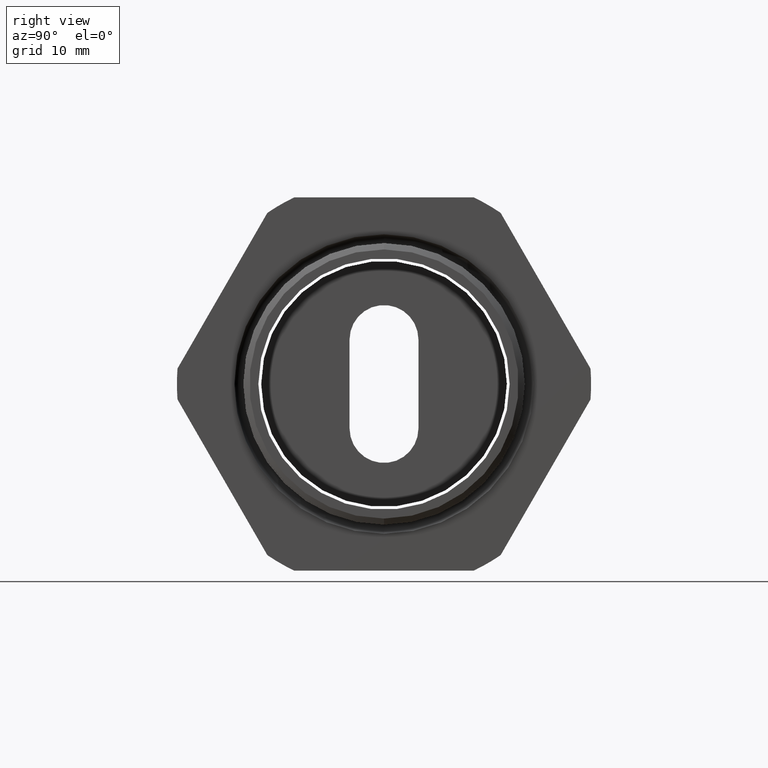
[diagram: clean part render]
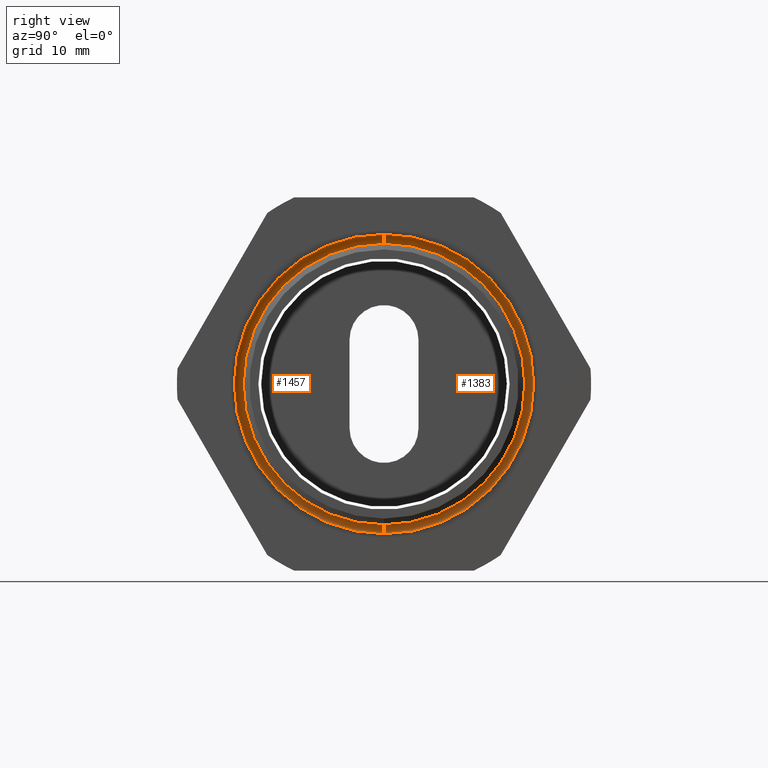
[diagram: same view with one multi-face feature highlighted, each face labeled with its STEP entity id]
A machine part, right view. The highlighted faces form ONE feature: a constant-radius fillet chain: 2 tangent blend faces with common blend radius 0.635 mm. The faces share edges in the B-rep.
Their STEP definitions:
[1] entity #1457 (Torus):
#177 = ORIENTED_EDGE ( 'NONE', *, *, #257, .F. ) ;
#197 = ORIENTED_EDGE ( 'NONE', *, *, #212, .F. ) ;
#198 = VERTEX_POINT ( 'NONE', #1812 ) ;
#212 = EDGE_CURVE ( 'NONE', #1411, #198, #1848, .T. ) ;
#213 = ORIENTED_EDGE ( 'NONE', *, *, #214, .T. ) ;
#214 = EDGE_CURVE ( 'NONE', #1414, #215, #1843, .T. ) ;
#215 = VERTEX_POINT ( 'NONE', #1838 ) ;
#257 = EDGE_CURVE ( 'NONE', #198, #215, #1950, .T. ) ;
#1411 = VERTEX_POINT ( 'NONE', #3917 ) ;
#1414 = VERTEX_POINT ( 'NONE', #3977 ) ;
#1453 = EDGE_CURVE ( 'NONE', #1414, #1411, #3984, .T. ) ;
#1457 = ADVANCED_FACE ( 'NONE', ( #4031 ), #4030, .F. ) ;
#1458 = EDGE_LOOP ( 'NONE', ( #1459, #213, #177, #197 ) ) ;
#1459 = ORIENTED_EDGE ( 'NONE', *, *, #1453, .F. ) ;
#1812 = CARTESIAN_POINT ( 'NONE',  ( -0.3100000000000000500, 1.052269570902439300E-049, -0.5214554190084089700 ) ) ;
#1838 = CARTESIAN_POINT ( 'NONE',  ( -0.3100000000000000500, 6.385987097866900100E-017, 0.5214554190084089700 ) ) ;
#1839 = DIRECTION ( 'NONE',  ( 0.0000000000000000000, 1.224646799147354700E-016, 1.000000000000000000 ) ) ;
#1840 = DIRECTION ( 'NONE',  ( 0.0000000000000000000, 1.000000000000000000, -1.224646799147353200E-016 ) ) ;
#1841 = CARTESIAN_POINT ( 'NONE',  ( -0.3100000000000000000, 6.079825398080061300E-017, 0.4964554190084090000 ) ) ;
#1842 = AXIS2_PLACEMENT_3D ( 'NONE', #1841, #1840, #1839 ) ;
#1843 = CIRCLE ( 'NONE', #1842, 0.02500000000000000500 ) ;
#1844 = DIRECTION ( 'NONE',  ( 0.0000000000000000000, 0.0000000000000000000, -1.000000000000000000 ) ) ;
#1845 = DIRECTION ( 'NONE',  ( -0.0000000000000000000, -1.000000000000000000, -0.0000000000000000000 ) ) ;
#1846 = CARTESIAN_POINT ( 'NONE',  ( -0.3100000000000000000, 0.0000000000000000000, -0.4964554190084090000 ) ) ;
#1847 = AXIS2_PLACEMENT_3D ( 'NONE', #1846, #1845, #1844 ) ;
#1848 = CIRCLE ( 'NONE', #1847, 0.02500000000000000500 ) ;
#1946 = DIRECTION ( 'NONE',  ( 0.0000000000000000000, 1.000000000000000000, 0.0000000000000000000 ) ) ;
#1947 = DIRECTION ( 'NONE',  ( -1.000000000000000000, 3.749030204222210100E-017, 0.0000000000000000000 ) ) ;
#1948 = CARTESIAN_POINT ( 'NONE',  ( -0.3100000000000000500, 1.827179571382155700E-033, 0.0000000000000000000 ) ) ;
#1949 = AXIS2_PLACEMENT_3D ( 'NONE', #1948, #1947, #1946 ) ;
#1950 = CIRCLE ( 'NONE', #1949, 0.5214554190084089700 ) ;
#3917 = CARTESIAN_POINT ( 'NONE',  ( -0.3100000000000000000, 0.0000000000000000000, -0.4714554190084089800 ) ) ;
#3977 = CARTESIAN_POINT ( 'NONE',  ( -0.3100000000000000000, 5.773663698293222400E-017, 0.4714554190084089800 ) ) ;
#3978 = CARTESIAN_POINT ( 'NONE',  ( -0.3100000000000000000, 0.0000000000000000000, 0.0000000000000000000 ) ) ;
#3979 = AXIS2_PLACEMENT_3D ( 'NONE', #3978, #4038, #4037 ) ;
#3984 = CIRCLE ( 'NONE', #3979, 0.4714554190084089800 ) ;
#4025 = DIRECTION ( 'NONE',  ( 0.0000000000000000000, 0.0000000000000000000, -1.000000000000000000 ) ) ;
#4026 = DIRECTION ( 'NONE',  ( 1.000000000000000000, -0.0000000000000000000, -0.0000000000000000000 ) ) ;
#4027 = CARTESIAN_POINT ( 'NONE',  ( -0.3100000000000000000, 0.0000000000000000000, 0.0000000000000000000 ) ) ;
#4028 = AXIS2_PLACEMENT_3D ( 'NONE', #4027, #4026, #4025 ) ;
#4030 = TOROIDAL_SURFACE ( 'NONE', #4028, 0.4964554190084090000, 0.02500000000000002900 ) ;
#4031 = FACE_OUTER_BOUND ( 'NONE', #1458, .T. ) ;
#4037 = DIRECTION ( 'NONE',  ( 0.0000000000000000000, 0.0000000000000000000, -1.000000000000000000 ) ) ;
#4038 = DIRECTION ( 'NONE',  ( 1.000000000000000000, -0.0000000000000000000, -0.0000000000000000000 ) ) ;
[2] entity #1383 (Torus):
#198 = VERTEX_POINT ( 'NONE', #1812 ) ;
#212 = EDGE_CURVE ( 'NONE', #1411, #198, #1848, .T. ) ;
#214 = EDGE_CURVE ( 'NONE', #1414, #215, #1843, .T. ) ;
#215 = VERTEX_POINT ( 'NONE', #1838 ) ;
#635 = EDGE_CURVE ( 'NONE', #215, #198, #2709, .T. ) ;
#1307 = ORIENTED_EDGE ( 'NONE', *, *, #212, .T. ) ;
#1308 = ORIENTED_EDGE ( 'NONE', *, *, #635, .F. ) ;
#1374 = ORIENTED_EDGE ( 'NONE', *, *, #214, .F. ) ;
#1383 = ADVANCED_FACE ( 'NONE', ( #3897 ), #3892, .F. ) ;
#1384 = EDGE_LOOP ( 'NONE', ( #1385, #1307, #1308, #1374 ) ) ;
#1385 = ORIENTED_EDGE ( 'NONE', *, *, #1413, .F. ) ;
#1411 = VERTEX_POINT ( 'NONE', #3917 ) ;
#1413 = EDGE_CURVE ( 'NONE', #1411, #1414, #3916, .T. ) ;
#1414 = VERTEX_POINT ( 'NONE', #3977 ) ;
#1812 = CARTESIAN_POINT ( 'NONE',  ( -0.3100000000000000500, 1.052269570902439300E-049, -0.5214554190084089700 ) ) ;
#1838 = CARTESIAN_POINT ( 'NONE',  ( -0.3100000000000000500, 6.385987097866900100E-017, 0.5214554190084089700 ) ) ;
#1839 = DIRECTION ( 'NONE',  ( 0.0000000000000000000, 1.224646799147354700E-016, 1.000000000000000000 ) ) ;
#1840 = DIRECTION ( 'NONE',  ( 0.0000000000000000000, 1.000000000000000000, -1.224646799147353200E-016 ) ) ;
#1841 = CARTESIAN_POINT ( 'NONE',  ( -0.3100000000000000000, 6.079825398080061300E-017, 0.4964554190084090000 ) ) ;
#1842 = AXIS2_PLACEMENT_3D ( 'NONE', #1841, #1840, #1839 ) ;
#1843 = CIRCLE ( 'NONE', #1842, 0.02500000000000000500 ) ;
#1844 = DIRECTION ( 'NONE',  ( 0.0000000000000000000, 0.0000000000000000000, -1.000000000000000000 ) ) ;
#1845 = DIRECTION ( 'NONE',  ( -0.0000000000000000000, -1.000000000000000000, -0.0000000000000000000 ) ) ;
#1846 = CARTESIAN_POINT ( 'NONE',  ( -0.3100000000000000000, 0.0000000000000000000, -0.4964554190084090000 ) ) ;
#1847 = AXIS2_PLACEMENT_3D ( 'NONE', #1846, #1845, #1844 ) ;
#1848 = CIRCLE ( 'NONE', #1847, 0.02500000000000000500 ) ;
#2705 = DIRECTION ( 'NONE',  ( 0.0000000000000000000, 1.000000000000000000, 0.0000000000000000000 ) ) ;
#2706 = DIRECTION ( 'NONE',  ( -1.000000000000000000, 3.749030204222210100E-017, 0.0000000000000000000 ) ) ;
#2707 = CARTESIAN_POINT ( 'NONE',  ( -0.3100000000000000500, 1.827179571382155700E-033, 0.0000000000000000000 ) ) ;
#2708 = AXIS2_PLACEMENT_3D ( 'NONE', #2707, #2706, #2705 ) ;
#2709 = CIRCLE ( 'NONE', #2708, 0.5214554190084089700 ) ;
#2921 = CARTESIAN_POINT ( 'NONE',  ( -0.3100000000000000000, 0.0000000000000000000, 0.0000000000000000000 ) ) ;
#3164 = DIRECTION ( 'NONE',  ( 1.000000000000000000, -0.0000000000000000000, -0.0000000000000000000 ) ) ;
#3165 = DIRECTION ( 'NONE',  ( 0.0000000000000000000, 0.0000000000000000000, -1.000000000000000000 ) ) ;
#3888 = DIRECTION ( 'NONE',  ( 0.0000000000000000000, 0.0000000000000000000, -1.000000000000000000 ) ) ;
#3889 = DIRECTION ( 'NONE',  ( 1.000000000000000000, -0.0000000000000000000, -0.0000000000000000000 ) ) ;
#3890 = CARTESIAN_POINT ( 'NONE',  ( -0.3100000000000000000, 0.0000000000000000000, 0.0000000000000000000 ) ) ;
#3891 = AXIS2_PLACEMENT_3D ( 'NONE', #3890, #3889, #3888 ) ;
#3892 = TOROIDAL_SURFACE ( 'NONE', #3891, 0.4964554190084090000, 0.02500000000000002900 ) ;
#3897 = FACE_OUTER_BOUND ( 'NONE', #1384, .T. ) ;
#3915 = AXIS2_PLACEMENT_3D ( 'NONE', #2921, #3164, #3165 ) ;
#3916 = CIRCLE ( 'NONE', #3915, 0.4714554190084089800 ) ;
#3917 = CARTESIAN_POINT ( 'NONE',  ( -0.3100000000000000000, 0.0000000000000000000, -0.4714554190084089800 ) ) ;
#3977 = CARTESIAN_POINT ( 'NONE',  ( -0.3100000000000000000, 5.773663698293222400E-017, 0.4714554190084089800 ) ) ;